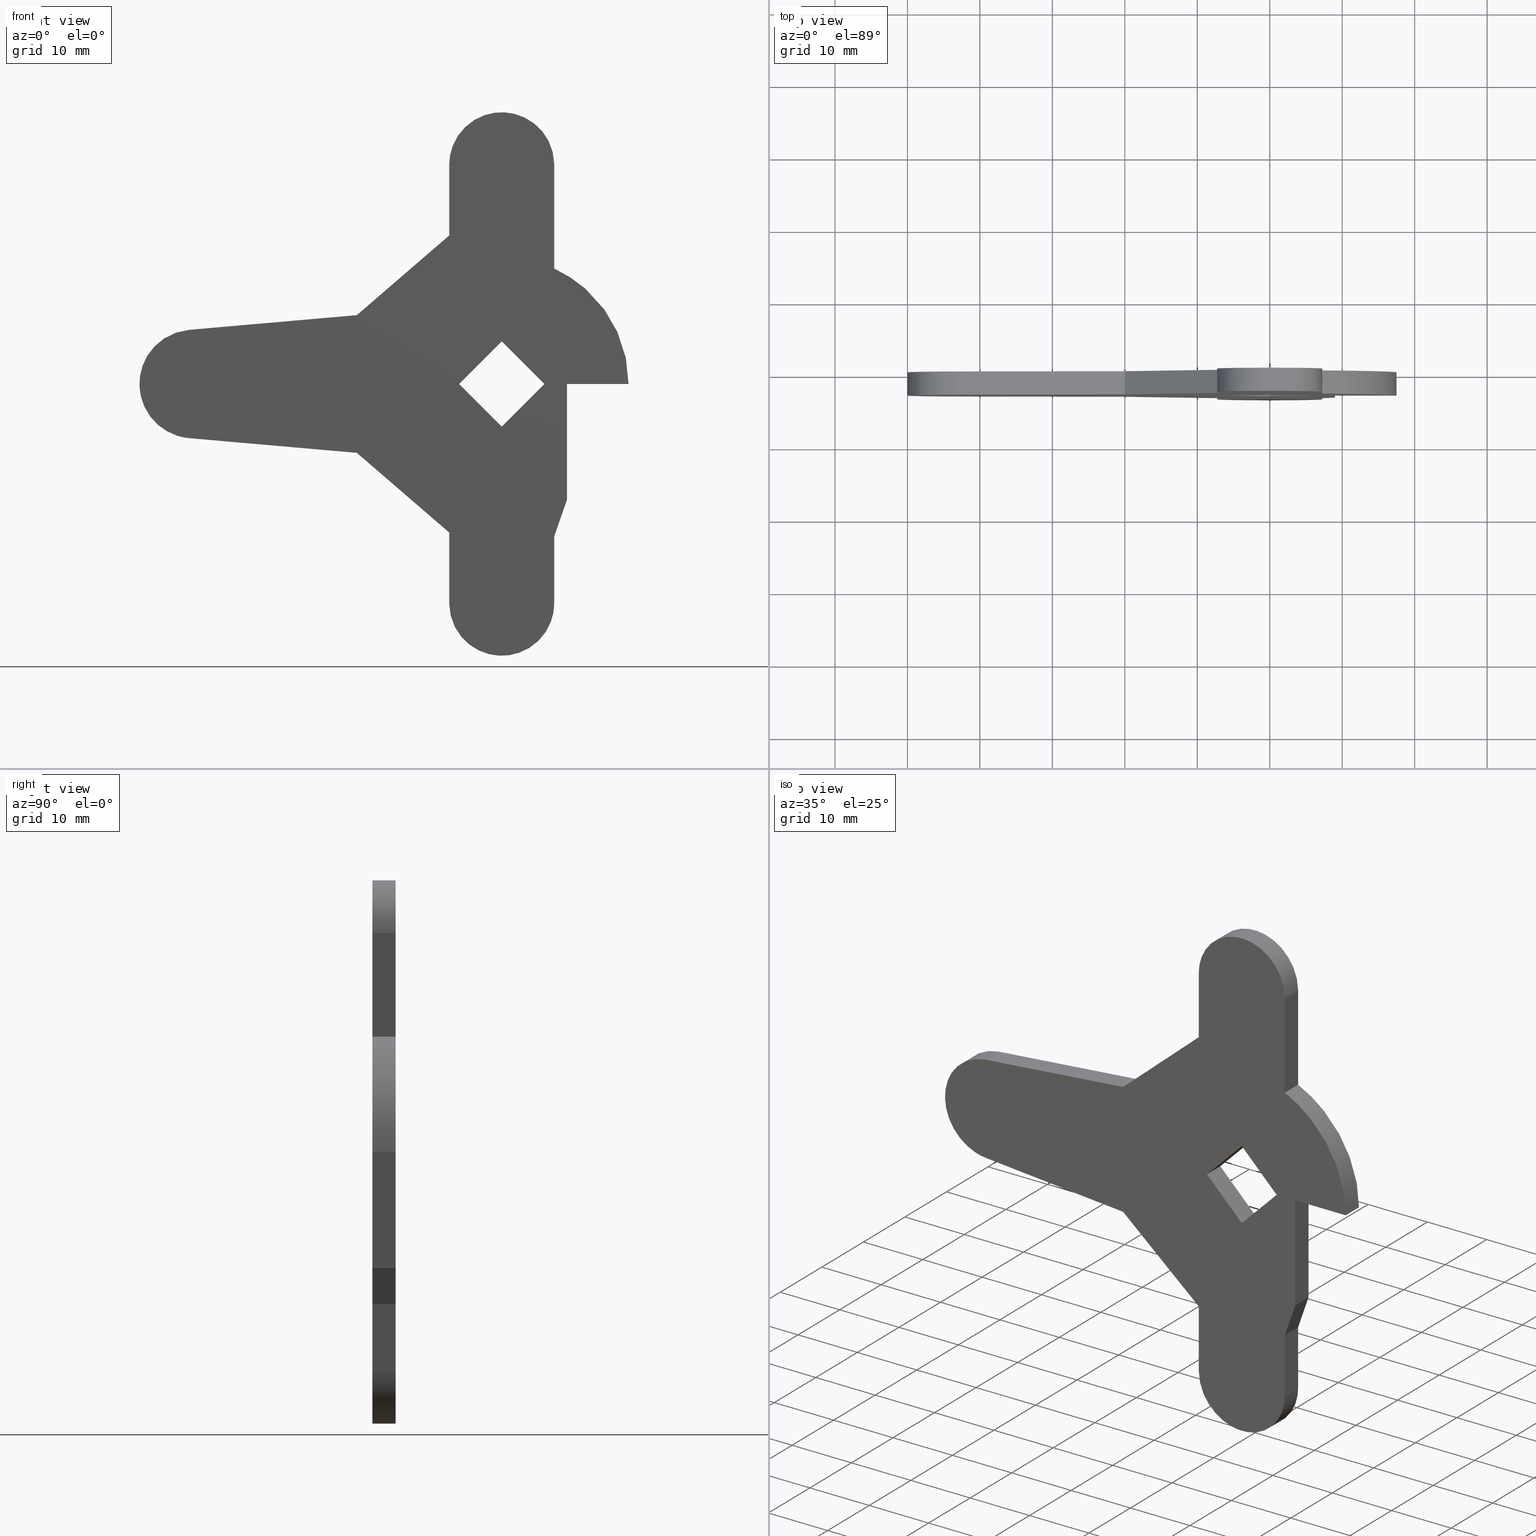
[diagram: canonical four-view strip — front | top / right | iso, engineering-drawing reading convention]
A machine part, canonical four-view strip (front | top / right | iso — engineering-drawing reading convention). The complete STEP part file that produces these views, byte-faithful:
ISO-10303-21;
HEADER;
/****************************************************************
 * Generated by software with PDE/Lib inside                    *
 * PDElib Version 4.4.1-0003, patched  Thursday August 19 11:58 *
 * International Technegroup Inc. (www.iti-oh.com)              *
 ****************************************************************/
FILE_DESCRIPTION((''),'2;1');
FILE_NAME('','2005-10-12T14:37:30',(''),(''),'','CADfix','');
FILE_SCHEMA(('AUTOMOTIVE_DESIGN'));
ENDSEC;
DATA;
#5=APPLICATION_CONTEXT('automotive design');
#6=APPLICATION_PROTOCOL_DEFINITION('Draft International Standard','automotive_design',1998,#5);
#7=PRODUCT_CONTEXT('None',#5,'mechanical');
#8=PRODUCT('cam','','None',(#7));
#9=PRODUCT_RELATED_PRODUCT_CATEGORY('part','description',(#8));
#10=PRODUCT_DEFINITION_FORMATION('None','None',#8);
#11=PRODUCT_DEFINITION_CONTEXT('part definition',#5,'design');
#12=PRODUCT_DEFINITION('None','None',#10,#11);
#18=(NAMED_UNIT(*)PLANE_ANGLE_UNIT()SI_UNIT($,.RADIAN.));
#19=DIMENSIONAL_EXPONENTS(0.0,0.0,0.0,0.0,0.0,0.0,0.0);
#20=PLANE_ANGLE_MEASURE_WITH_UNIT(PLANE_ANGLE_MEASURE(0.017453292500000),#18);
#24=(CONVERSION_BASED_UNIT('DEGREE',#20)NAMED_UNIT(#19)PLANE_ANGLE_UNIT());
#28=(NAMED_UNIT(*)SI_UNIT($,.STERADIAN.)SOLID_ANGLE_UNIT());
#32=(LENGTH_UNIT()NAMED_UNIT(*)SI_UNIT(.MILLI.,.METRE.));
#34=UNCERTAINTY_MEASURE_WITH_UNIT(LENGTH_MEASURE(0.001000000000000),#32,'DISTANCE_ACCURACY_VALUE','');
#36=(GEOMETRIC_REPRESENTATION_CONTEXT(3)GLOBAL_UNCERTAINTY_ASSIGNED_CONTEXT((#34))GLOBAL_UNIT_ASSIGNED_CONTEXT((#24,#28,#32))REPRESENTATION_CONTEXT('None','None'));
#37=AXIS2_PLACEMENT_3D('',#38,#39,#40);
#38=CARTESIAN_POINT('',(0.0,0.0,0.0));
#39=DIRECTION('',(0.0,0.0,1.0));
#40=DIRECTION('',(1.0,0.0,0.0));
#41=ADVANCED_BREP_SHAPE_REPRESENTATION('',(#37,#759),#36);
#42=PRODUCT_DEFINITION_SHAPE('','',#12);
#43=SHAPE_DEFINITION_REPRESENTATION(#42,#41);
#44=CARTESIAN_POINT('',(-53.371669325223678,0.0,41.246249854635423));
#45=CARTESIAN_POINT('',(20.871628794602639,0.0,41.246249854635423));
#46=CARTESIAN_POINT('',(-53.371669325223678,0.0,-41.246251866292177));
#47=CARTESIAN_POINT('',(20.871628794602639,0.0,-41.246251866292177));
#48=B_SPLINE_SURFACE_WITH_KNOTS('',1,1,((#44,#46),(#45,#47)),.UNSPECIFIED.,.F.,.F.,.U.,(2,2),(2,2),(0.0,74.243298119826321),(0.0,82.492501720927606),.UNSPECIFIED.);
#49=CARTESIAN_POINT('',(-7.250000000000000,0.0,20.500000000000000));
#50=VERTEX_POINT('',#49);
#51=CARTESIAN_POINT('',(-20.0,0.0,9.499999999999801));
#52=VERTEX_POINT('',#51);
#53=CARTESIAN_POINT('',(-7.250000000000000,0.0,20.500000000000000));
#54=CARTESIAN_POINT('',(-20.0,0.0,9.499999999999801));
#55=QUASI_UNIFORM_CURVE('',1,(#53,#54),.UNSPECIFIED.,.F.,.U.);
#56=EDGE_CURVE('',#50,#52,#55,.T.);
#57=ORIENTED_EDGE('',*,*,#56,.F.);
#58=CARTESIAN_POINT('',(-7.250000000000000,0.0,30.250000000000000));
#59=VERTEX_POINT('',#58);
#60=CARTESIAN_POINT('',(-7.250000000000000,0.0,30.250000000000000));
#61=CARTESIAN_POINT('',(-7.250000000000000,0.0,20.500000000000000));
#62=QUASI_UNIFORM_CURVE('',1,(#60,#61),.UNSPECIFIED.,.F.,.U.);
#63=EDGE_CURVE('',#59,#50,#62,.T.);
#64=ORIENTED_EDGE('',*,*,#63,.F.);
#65=CARTESIAN_POINT('',(7.249999999999901,0.0,30.250000000000000));
#66=VERTEX_POINT('',#65);
#67=CARTESIAN_POINT('',(7.249999999999901,0.0,30.250000000000000));
#68=CARTESIAN_POINT('',(7.250000000000000,0.0,37.499999999999993));
#69=CARTESIAN_POINT('',(0.0,0.0,37.500000000000000));
#70=CARTESIAN_POINT('',(-7.250000000000000,0.0,37.499999999999993));
#71=CARTESIAN_POINT('',(-7.250000000000000,0.0,30.250000000000000));
#79=(BOUNDED_CURVE()B_SPLINE_CURVE(2,(#67,#68,#69,#70,#71),.UNSPECIFIED.,.F.,.U.)B_SPLINE_CURVE_WITH_KNOTS((3,2,3),(0.0,0.500000000000000,1.0),.UNSPECIFIED.)CURVE()GEOMETRIC_REPRESENTATION_ITEM()RATIONAL_B_SPLINE_CURVE((1.0,0.707106781186548,1.0,0.707106781186548,1.0))REPRESENTATION_ITEM(''));
#80=EDGE_CURVE('',#66,#59,#79,.T.);
#81=ORIENTED_EDGE('',*,*,#80,.F.);
#82=CARTESIAN_POINT('',(7.249999999999901,0.0,15.927570436196500));
#83=VERTEX_POINT('',#82);
#84=CARTESIAN_POINT('',(7.249999999999901,0.0,15.927570436196500));
#85=CARTESIAN_POINT('',(7.249999999999901,0.0,30.250000000000000));
#86=QUASI_UNIFORM_CURVE('',1,(#84,#85),.UNSPECIFIED.,.F.,.U.);
#87=EDGE_CURVE('',#83,#66,#86,.T.);
#88=ORIENTED_EDGE('',*,*,#87,.F.);
#89=CARTESIAN_POINT('',(17.500000000000000,0.0,0.0));
#90=VERTEX_POINT('',#89);
#91=CARTESIAN_POINT('',(17.500000000000000,0.0,0.0));
#92=CARTESIAN_POINT('',(17.500000000000000,0.0,11.261918490240001));
#93=CARTESIAN_POINT('',(7.249999999999916,0.0,15.927570436196520));
#101=(BOUNDED_CURVE()B_SPLINE_CURVE(2,(#91,#92,#93),.UNSPECIFIED.,.F.,.U.)CURVE()GEOMETRIC_REPRESENTATION_ITEM()QUASI_UNIFORM_CURVE()RATIONAL_B_SPLINE_CURVE((1.0,0.840917865872081,1.0))REPRESENTATION_ITEM(''));
#102=EDGE_CURVE('',#90,#83,#101,.T.);
#103=ORIENTED_EDGE('',*,*,#102,.F.);
#104=CARTESIAN_POINT('',(9.0,0.0,0.0));
#105=VERTEX_POINT('',#104);
#106=CARTESIAN_POINT('',(9.0,0.0,0.0));
#107=CARTESIAN_POINT('',(17.500000000000000,0.0,0.0));
#108=QUASI_UNIFORM_CURVE('',1,(#106,#107),.UNSPECIFIED.,.F.,.U.);
#109=EDGE_CURVE('',#105,#90,#108,.T.);
#110=ORIENTED_EDGE('',*,*,#109,.F.);
#111=CARTESIAN_POINT('',(9.0,0.0,-16.0));
#112=VERTEX_POINT('',#111);
#113=CARTESIAN_POINT('',(9.0,0.0,-16.0));
#114=CARTESIAN_POINT('',(9.0,0.0,0.0));
#115=QUASI_UNIFORM_CURVE('',1,(#113,#114),.UNSPECIFIED.,.F.,.U.);
#116=EDGE_CURVE('',#112,#105,#115,.T.);
#117=ORIENTED_EDGE('',*,*,#116,.F.);
#118=CARTESIAN_POINT('',(7.249999999999901,0.0,-21.0));
#119=VERTEX_POINT('',#118);
#120=CARTESIAN_POINT('',(7.249999999999901,0.0,-21.0));
#121=CARTESIAN_POINT('',(9.0,0.0,-16.0));
#122=QUASI_UNIFORM_CURVE('',1,(#120,#121),.UNSPECIFIED.,.F.,.U.);
#123=EDGE_CURVE('',#119,#112,#122,.T.);
#124=ORIENTED_EDGE('',*,*,#123,.F.);
#125=CARTESIAN_POINT('',(7.250000000000000,0.0,-30.250000000000000));
#126=VERTEX_POINT('',#125);
#127=CARTESIAN_POINT('',(7.250000000000000,0.0,-30.250000000000000));
#128=CARTESIAN_POINT('',(7.249999999999901,0.0,-21.0));
#129=QUASI_UNIFORM_CURVE('',1,(#127,#128),.UNSPECIFIED.,.F.,.U.);
#130=EDGE_CURVE('',#126,#119,#129,.T.);
#131=ORIENTED_EDGE('',*,*,#130,.F.);
#132=CARTESIAN_POINT('',(-7.250000000000000,0.0,-30.250000000000000));
#133=VERTEX_POINT('',#132);
#134=CARTESIAN_POINT('',(-7.250000000000000,0.0,-30.250000000000000));
#135=CARTESIAN_POINT('',(-7.250000000000000,0.0,-37.499999999999993));
#136=CARTESIAN_POINT('',(0.0,0.0,-37.500000000000000));
#137=CARTESIAN_POINT('',(7.250000000000000,0.0,-37.499999999999993));
#138=CARTESIAN_POINT('',(7.250000000000000,0.0,-30.250000000000000));
#146=(BOUNDED_CURVE()B_SPLINE_CURVE(2,(#134,#135,#136,#137,#138),.UNSPECIFIED.,.F.,.U.)B_SPLINE_CURVE_WITH_KNOTS((3,2,3),(0.0,0.500000000000000,1.0),.UNSPECIFIED.)CURVE()GEOMETRIC_REPRESENTATION_ITEM()RATIONAL_B_SPLINE_CURVE((1.0,0.707106781186548,1.0,0.707106781186548,1.0))REPRESENTATION_ITEM(''));
#147=EDGE_CURVE('',#133,#126,#146,.T.);
#148=ORIENTED_EDGE('',*,*,#147,.F.);
#149=CARTESIAN_POINT('',(-7.250000000000000,0.0,-20.500000000000000));
#150=VERTEX_POINT('',#149);
#151=CARTESIAN_POINT('',(-7.250000000000000,0.0,-20.500000000000000));
#152=CARTESIAN_POINT('',(-7.250000000000000,0.0,-30.250000000000000));
#153=QUASI_UNIFORM_CURVE('',1,(#151,#152),.UNSPECIFIED.,.F.,.U.);
#154=EDGE_CURVE('',#150,#133,#153,.T.);
#155=ORIENTED_EDGE('',*,*,#154,.F.);
#156=CARTESIAN_POINT('',(-20.0,0.0,-9.500000000000000));
#157=VERTEX_POINT('',#156);
#158=CARTESIAN_POINT('',(-20.0,0.0,-9.500000000000000));
#159=CARTESIAN_POINT('',(-7.250000000000000,0.0,-20.500000000000000));
#160=QUASI_UNIFORM_CURVE('',1,(#158,#159),.UNSPECIFIED.,.F.,.U.);
#161=EDGE_CURVE('',#157,#150,#160,.T.);
#162=ORIENTED_EDGE('',*,*,#161,.F.);
#163=CARTESIAN_POINT('',(-43.154599674777700,0.0,-7.471400028493091));
#164=VERTEX_POINT('',#163);
#165=CARTESIAN_POINT('',(-43.154599674777700,0.0,-7.471400028493091));
#166=CARTESIAN_POINT('',(-20.0,0.0,-9.500000000000000));
#167=QUASI_UNIFORM_CURVE('',1,(#165,#166),.UNSPECIFIED.,.F.,.U.);
#168=EDGE_CURVE('',#164,#157,#167,.T.);
#169=ORIENTED_EDGE('',*,*,#168,.F.);
#170=CARTESIAN_POINT('',(-43.154600000000002,0.0,7.471399999999900));
#171=VERTEX_POINT('',#170);
#172=CARTESIAN_POINT('',(-43.154600000000002,0.0,7.471399999999907));
#173=CARTESIAN_POINT('',(-50.000041887174163,0.0,6.871663299200882));
#174=CARTESIAN_POINT('',(-50.000041737615973,0.0,-0.000000163234088));
#175=CARTESIAN_POINT('',(-50.000041588057769,0.0,-6.871663625669059));
#176=CARTESIAN_POINT('',(-43.154599674777700,0.0,-7.471400028493090));
#184=(BOUNDED_CURVE()B_SPLINE_CURVE(2,(#172,#173,#174,#175,#176),.UNSPECIFIED.,.F.,.U.)B_SPLINE_CURVE_WITH_KNOTS((3,2,3),(0.0,0.500000000000000,1.0),.UNSPECIFIED.)CURVE()GEOMETRIC_REPRESENTATION_ITEM()RATIONAL_B_SPLINE_CURVE((1.0,0.737318372285746,1.0,0.737318372285746,1.0))REPRESENTATION_ITEM(''));
#185=EDGE_CURVE('',#171,#164,#184,.T.);
#186=ORIENTED_EDGE('',*,*,#185,.F.);
#187=CARTESIAN_POINT('',(-20.0,0.0,9.499999999999801));
#188=CARTESIAN_POINT('',(-43.154600000000002,0.0,7.471399999999900));
#189=QUASI_UNIFORM_CURVE('',1,(#187,#188),.UNSPECIFIED.,.F.,.U.);
#190=EDGE_CURVE('',#52,#171,#189,.T.);
#191=ORIENTED_EDGE('',*,*,#190,.F.);
#192=EDGE_LOOP('',(#57,#64,#81,#88,#103,#110,#117,#124,#131,#148,#155,#162,#169,#186,#191));
#193=FACE_OUTER_BOUND('',#192,.T.);
#194=CARTESIAN_POINT('',(5.868999999999900,0.0,0.0));
#195=VERTEX_POINT('',#194);
#196=CARTESIAN_POINT('',(0.0,0.0,-5.869000000000000));
#197=VERTEX_POINT('',#196);
#198=CARTESIAN_POINT('',(5.868999999999900,0.0,0.0));
#199=CARTESIAN_POINT('',(0.0,0.0,-5.869000000000000));
#200=QUASI_UNIFORM_CURVE('',1,(#198,#199),.UNSPECIFIED.,.F.,.U.);
#201=EDGE_CURVE('',#195,#197,#200,.T.);
#202=ORIENTED_EDGE('',*,*,#201,.F.);
#203=CARTESIAN_POINT('',(0.0,0.0,5.869000000000000));
#204=VERTEX_POINT('',#203);
#205=CARTESIAN_POINT('',(0.0,0.0,5.869000000000000));
#206=CARTESIAN_POINT('',(5.868999999999900,0.0,0.0));
#207=QUASI_UNIFORM_CURVE('',1,(#205,#206),.UNSPECIFIED.,.F.,.U.);
#208=EDGE_CURVE('',#204,#195,#207,.T.);
#209=ORIENTED_EDGE('',*,*,#208,.F.);
#210=CARTESIAN_POINT('',(-5.869000000000000,0.0,0.0));
#211=VERTEX_POINT('',#210);
#212=CARTESIAN_POINT('',(-5.869000000000000,0.0,0.0));
#213=CARTESIAN_POINT('',(0.0,0.0,5.869000000000000));
#214=QUASI_UNIFORM_CURVE('',1,(#212,#213),.UNSPECIFIED.,.F.,.U.);
#215=EDGE_CURVE('',#211,#204,#214,.T.);
#216=ORIENTED_EDGE('',*,*,#215,.F.);
#217=CARTESIAN_POINT('',(0.0,0.0,-5.869000000000000));
#218=CARTESIAN_POINT('',(-5.869000000000000,0.0,0.0));
#219=QUASI_UNIFORM_CURVE('',1,(#217,#218),.UNSPECIFIED.,.F.,.U.);
#220=EDGE_CURVE('',#197,#211,#219,.T.);
#221=ORIENTED_EDGE('',*,*,#220,.F.);
#222=EDGE_LOOP('',(#202,#209,#216,#221));
#223=FACE_BOUND('',#222,.T.);
#224=ADVANCED_FACE('',(#193,#223),#48,.T.);
#225=CARTESIAN_POINT('',(-53.371669325223678,-3.200000000000000,41.246249854635423));
#226=CARTESIAN_POINT('',(20.871628794602639,-3.200000000000000,41.246249854635423));
#227=CARTESIAN_POINT('',(-53.371669325223678,-3.200000000000000,-41.246251866292177));
#228=CARTESIAN_POINT('',(20.871628794602639,-3.200000000000000,-41.246251866292177));
#229=B_SPLINE_SURFACE_WITH_KNOTS('',1,1,((#225,#227),(#226,#228)),.UNSPECIFIED.,.F.,.F.,.U.,(2,2),(2,2),(0.0,74.243298119826321),(0.0,82.492501720927606),.UNSPECIFIED.);
#230=CARTESIAN_POINT('',(-7.250000000000000,-3.200000000000000,20.500000000000000));
#231=VERTEX_POINT('',#230);
#232=CARTESIAN_POINT('',(-20.0,-3.200000000000000,9.499999999999801));
#233=VERTEX_POINT('',#232);
#234=CARTESIAN_POINT('',(-7.250000000000000,-3.200000000000000,20.500000000000000));
#235=CARTESIAN_POINT('',(-20.0,-3.200000000000000,9.499999999999801));
#236=QUASI_UNIFORM_CURVE('',1,(#234,#235),.UNSPECIFIED.,.F.,.U.);
#237=EDGE_CURVE('',#231,#233,#236,.T.);
#238=ORIENTED_EDGE('',*,*,#237,.T.);
#239=CARTESIAN_POINT('',(-43.154600000000002,-3.200000000000000,7.471399999999900));
#240=VERTEX_POINT('',#239);
#241=CARTESIAN_POINT('',(-20.0,-3.200000000000000,9.499999999999801));
#242=CARTESIAN_POINT('',(-43.154600000000002,-3.200000000000000,7.471399999999900));
#243=QUASI_UNIFORM_CURVE('',1,(#241,#242),.UNSPECIFIED.,.F.,.U.);
#244=EDGE_CURVE('',#233,#240,#243,.T.);
#245=ORIENTED_EDGE('',*,*,#244,.T.);
#246=CARTESIAN_POINT('',(-43.154599674777700,-3.200000000000000,-7.471400028493091));
#247=VERTEX_POINT('',#246);
#248=CARTESIAN_POINT('',(-43.154600000000002,-3.200000000000000,7.471399999999907));
#249=CARTESIAN_POINT('',(-50.000041887174163,-3.200000000000001,6.871663299200882));
#250=CARTESIAN_POINT('',(-50.000041737615973,-3.200000000000000,-0.000000163234088));
#251=CARTESIAN_POINT('',(-50.000041588057769,-3.200000000000001,-6.871663625669059));
#252=CARTESIAN_POINT('',(-43.154599674777700,-3.200000000000000,-7.471400028493090));
#260=(BOUNDED_CURVE()B_SPLINE_CURVE(2,(#248,#249,#250,#251,#252),.UNSPECIFIED.,.F.,.U.)B_SPLINE_CURVE_WITH_KNOTS((3,2,3),(0.0,0.500000000000000,1.0),.UNSPECIFIED.)CURVE()GEOMETRIC_REPRESENTATION_ITEM()RATIONAL_B_SPLINE_CURVE((1.0,0.737318372285746,1.0,0.737318372285746,1.0))REPRESENTATION_ITEM(''));
#261=EDGE_CURVE('',#240,#247,#260,.T.);
#262=ORIENTED_EDGE('',*,*,#261,.T.);
#263=CARTESIAN_POINT('',(-20.0,-3.200000000000000,-9.500000000000000));
#264=VERTEX_POINT('',#263);
#265=CARTESIAN_POINT('',(-43.154599674777700,-3.200000000000000,-7.471400028493091));
#266=CARTESIAN_POINT('',(-20.0,-3.200000000000000,-9.500000000000000));
#267=QUASI_UNIFORM_CURVE('',1,(#265,#266),.UNSPECIFIED.,.F.,.U.);
#268=EDGE_CURVE('',#247,#264,#267,.T.);
#269=ORIENTED_EDGE('',*,*,#268,.T.);
#270=CARTESIAN_POINT('',(-7.250000000000000,-3.200000000000000,-20.500000000000000));
#271=VERTEX_POINT('',#270);
#272=CARTESIAN_POINT('',(-20.0,-3.200000000000000,-9.500000000000000));
#273=CARTESIAN_POINT('',(-7.250000000000000,-3.200000000000000,-20.500000000000000));
#274=QUASI_UNIFORM_CURVE('',1,(#272,#273),.UNSPECIFIED.,.F.,.U.);
#275=EDGE_CURVE('',#264,#271,#274,.T.);
#276=ORIENTED_EDGE('',*,*,#275,.T.);
#277=CARTESIAN_POINT('',(-7.250000000000000,-3.200000000000000,-30.250000000000000));
#278=VERTEX_POINT('',#277);
#279=CARTESIAN_POINT('',(-7.250000000000000,-3.200000000000000,-20.500000000000000));
#280=CARTESIAN_POINT('',(-7.250000000000000,-3.200000000000000,-30.250000000000000));
#281=QUASI_UNIFORM_CURVE('',1,(#279,#280),.UNSPECIFIED.,.F.,.U.);
#282=EDGE_CURVE('',#271,#278,#281,.T.);
#283=ORIENTED_EDGE('',*,*,#282,.T.);
#284=CARTESIAN_POINT('',(7.250000000000000,-3.200000000000000,-30.250000000000000));
#285=VERTEX_POINT('',#284);
#286=CARTESIAN_POINT('',(-7.250000000000000,-3.200000000000000,-30.250000000000000));
#287=CARTESIAN_POINT('',(-7.250000000000000,-3.200000000000000,-37.499999999999993));
#288=CARTESIAN_POINT('',(0.0,-3.200000000000000,-37.500000000000000));
#289=CARTESIAN_POINT('',(7.250000000000000,-3.200000000000000,-37.499999999999993));
#290=CARTESIAN_POINT('',(7.250000000000000,-3.200000000000000,-30.250000000000000));
#298=(BOUNDED_CURVE()B_SPLINE_CURVE(2,(#286,#287,#288,#289,#290),.UNSPECIFIED.,.F.,.U.)B_SPLINE_CURVE_WITH_KNOTS((3,2,3),(0.0,0.500000000000000,1.0),.UNSPECIFIED.)CURVE()GEOMETRIC_REPRESENTATION_ITEM()RATIONAL_B_SPLINE_CURVE((1.0,0.707106781186548,1.0,0.707106781186548,1.0))REPRESENTATION_ITEM(''));
#299=EDGE_CURVE('',#278,#285,#298,.T.);
#300=ORIENTED_EDGE('',*,*,#299,.T.);
#301=CARTESIAN_POINT('',(7.249999999999901,-3.200000000000000,-21.0));
#302=VERTEX_POINT('',#301);
#303=CARTESIAN_POINT('',(7.250000000000000,-3.200000000000000,-30.250000000000000));
#304=CARTESIAN_POINT('',(7.249999999999901,-3.200000000000000,-21.0));
#305=QUASI_UNIFORM_CURVE('',1,(#303,#304),.UNSPECIFIED.,.F.,.U.);
#306=EDGE_CURVE('',#285,#302,#305,.T.);
#307=ORIENTED_EDGE('',*,*,#306,.T.);
#308=CARTESIAN_POINT('',(9.0,-3.200000000000000,-16.0));
#309=VERTEX_POINT('',#308);
#310=CARTESIAN_POINT('',(7.249999999999901,-3.200000000000000,-21.0));
#311=CARTESIAN_POINT('',(9.0,-3.200000000000000,-16.0));
#312=QUASI_UNIFORM_CURVE('',1,(#310,#311),.UNSPECIFIED.,.F.,.U.);
#313=EDGE_CURVE('',#302,#309,#312,.T.);
#314=ORIENTED_EDGE('',*,*,#313,.T.);
#315=CARTESIAN_POINT('',(9.0,-3.200000000000000,0.0));
#316=VERTEX_POINT('',#315);
#317=CARTESIAN_POINT('',(9.0,-3.200000000000000,-16.0));
#318=CARTESIAN_POINT('',(9.0,-3.200000000000000,0.0));
#319=QUASI_UNIFORM_CURVE('',1,(#317,#318),.UNSPECIFIED.,.F.,.U.);
#320=EDGE_CURVE('',#309,#316,#319,.T.);
#321=ORIENTED_EDGE('',*,*,#320,.T.);
#322=CARTESIAN_POINT('',(17.500000000000000,-3.200000000000000,0.0));
#323=VERTEX_POINT('',#322);
#324=CARTESIAN_POINT('',(9.0,-3.200000000000000,0.0));
#325=CARTESIAN_POINT('',(17.500000000000000,-3.200000000000000,0.0));
#326=QUASI_UNIFORM_CURVE('',1,(#324,#325),.UNSPECIFIED.,.F.,.U.);
#327=EDGE_CURVE('',#316,#323,#326,.T.);
#328=ORIENTED_EDGE('',*,*,#327,.T.);
#329=CARTESIAN_POINT('',(7.249999999999901,-3.200000000000000,15.927570436196500));
#330=VERTEX_POINT('',#329);
#331=CARTESIAN_POINT('',(17.500000000000000,-3.200000000000000,0.0));
#332=CARTESIAN_POINT('',(17.500000000000000,-3.200000000000000,11.261918490240001));
#333=CARTESIAN_POINT('',(7.249999999999916,-3.200000000000000,15.927570436196520));
#341=(BOUNDED_CURVE()B_SPLINE_CURVE(2,(#331,#332,#333),.UNSPECIFIED.,.F.,.U.)CURVE()GEOMETRIC_REPRESENTATION_ITEM()QUASI_UNIFORM_CURVE()RATIONAL_B_SPLINE_CURVE((1.0,0.840917865872081,1.0))REPRESENTATION_ITEM(''));
#342=EDGE_CURVE('',#323,#330,#341,.T.);
#343=ORIENTED_EDGE('',*,*,#342,.T.);
#344=CARTESIAN_POINT('',(7.249999999999901,-3.200000000000000,30.250000000000000));
#345=VERTEX_POINT('',#344);
#346=CARTESIAN_POINT('',(7.249999999999901,-3.200000000000000,15.927570436196500));
#347=CARTESIAN_POINT('',(7.249999999999901,-3.200000000000000,30.250000000000000));
#348=QUASI_UNIFORM_CURVE('',1,(#346,#347),.UNSPECIFIED.,.F.,.U.);
#349=EDGE_CURVE('',#330,#345,#348,.T.);
#350=ORIENTED_EDGE('',*,*,#349,.T.);
#351=CARTESIAN_POINT('',(-7.250000000000000,-3.200000000000000,30.250000000000000));
#352=VERTEX_POINT('',#351);
#353=CARTESIAN_POINT('',(7.249999999999901,-3.200000000000000,30.250000000000000));
#354=CARTESIAN_POINT('',(7.250000000000000,-3.200000000000000,37.499999999999993));
#355=CARTESIAN_POINT('',(0.0,-3.200000000000000,37.500000000000000));
#356=CARTESIAN_POINT('',(-7.250000000000000,-3.200000000000000,37.499999999999993));
#357=CARTESIAN_POINT('',(-7.250000000000000,-3.200000000000000,30.250000000000000));
#365=(BOUNDED_CURVE()B_SPLINE_CURVE(2,(#353,#354,#355,#356,#357),.UNSPECIFIED.,.F.,.U.)B_SPLINE_CURVE_WITH_KNOTS((3,2,3),(0.0,0.500000000000000,1.0),.UNSPECIFIED.)CURVE()GEOMETRIC_REPRESENTATION_ITEM()RATIONAL_B_SPLINE_CURVE((1.0,0.707106781186548,1.0,0.707106781186548,1.0))REPRESENTATION_ITEM(''));
#366=EDGE_CURVE('',#345,#352,#365,.T.);
#367=ORIENTED_EDGE('',*,*,#366,.T.);
#368=CARTESIAN_POINT('',(-7.250000000000000,-3.200000000000000,30.250000000000000));
#369=CARTESIAN_POINT('',(-7.250000000000000,-3.200000000000000,20.500000000000000));
#370=QUASI_UNIFORM_CURVE('',1,(#368,#369),.UNSPECIFIED.,.F.,.U.);
#371=EDGE_CURVE('',#352,#231,#370,.T.);
#372=ORIENTED_EDGE('',*,*,#371,.T.);
#373=EDGE_LOOP('',(#238,#245,#262,#269,#276,#283,#300,#307,#314,#321,#328,#343,#350,#367,#372));
#374=FACE_OUTER_BOUND('',#373,.T.);
#375=CARTESIAN_POINT('',(5.868999999999900,-3.200000000000000,0.0));
#376=VERTEX_POINT('',#375);
#377=CARTESIAN_POINT('',(0.0,-3.200000000000000,-5.869000000000000));
#378=VERTEX_POINT('',#377);
#379=CARTESIAN_POINT('',(5.868999999999900,-3.200000000000000,0.0));
#380=CARTESIAN_POINT('',(0.0,-3.200000000000000,-5.869000000000000));
#381=QUASI_UNIFORM_CURVE('',1,(#379,#380),.UNSPECIFIED.,.F.,.U.);
#382=EDGE_CURVE('',#376,#378,#381,.T.);
#383=ORIENTED_EDGE('',*,*,#382,.T.);
#384=CARTESIAN_POINT('',(-5.869000000000000,-3.200000000000000,0.0));
#385=VERTEX_POINT('',#384);
#386=CARTESIAN_POINT('',(0.0,-3.200000000000000,-5.869000000000000));
#387=CARTESIAN_POINT('',(-5.869000000000000,-3.200000000000000,0.0));
#388=QUASI_UNIFORM_CURVE('',1,(#386,#387),.UNSPECIFIED.,.F.,.U.);
#389=EDGE_CURVE('',#378,#385,#388,.T.);
#390=ORIENTED_EDGE('',*,*,#389,.T.);
#391=CARTESIAN_POINT('',(0.0,-3.200000000000000,5.869000000000000));
#392=VERTEX_POINT('',#391);
#393=CARTESIAN_POINT('',(-5.869000000000000,-3.200000000000000,0.0));
#394=CARTESIAN_POINT('',(0.0,-3.200000000000000,5.869000000000000));
#395=QUASI_UNIFORM_CURVE('',1,(#393,#394),.UNSPECIFIED.,.F.,.U.);
#396=EDGE_CURVE('',#385,#392,#395,.T.);
#397=ORIENTED_EDGE('',*,*,#396,.T.);
#398=CARTESIAN_POINT('',(0.0,-3.200000000000000,5.869000000000000));
#399=CARTESIAN_POINT('',(5.868999999999900,-3.200000000000000,0.0));
#400=QUASI_UNIFORM_CURVE('',1,(#398,#399),.UNSPECIFIED.,.F.,.U.);
#401=EDGE_CURVE('',#392,#376,#400,.T.);
#402=ORIENTED_EDGE('',*,*,#401,.T.);
#403=EDGE_LOOP('',(#383,#390,#397,#402));
#404=FACE_BOUND('',#403,.T.);
#405=ADVANCED_FACE('',(#374,#404),#229,.F.);
#406=CARTESIAN_POINT('',(-0.293156538624735,-3.359840053876400,6.162156538624739));
#407=CARTESIAN_POINT('',(6.162156696043483,-3.359840053876400,-0.293156696043586));
#408=CARTESIAN_POINT('',(-0.293156538624735,0.159840082486630,6.162156538624739));
#409=CARTESIAN_POINT('',(6.162156696043483,0.159840082486630,-0.293156696043586));
#410=B_SPLINE_SURFACE_WITH_KNOTS('',1,1,((#406,#408),(#407,#409)),.UNSPECIFIED.,.F.,.F.,.U.,(2,2),(2,2),(0.0,9.129191525834404),(0.0,3.519680136363030),.UNSPECIFIED.);
#411=ORIENTED_EDGE('',*,*,#208,.T.);
#412=CARTESIAN_POINT('',(5.868999999999900,-3.200000000000000,0.0));
#413=CARTESIAN_POINT('',(5.868999999999900,0.0,0.0));
#414=QUASI_UNIFORM_CURVE('',1,(#412,#413),.UNSPECIFIED.,.F.,.U.);
#415=EDGE_CURVE('',#376,#195,#414,.T.);
#416=ORIENTED_EDGE('',*,*,#415,.F.);
#417=ORIENTED_EDGE('',*,*,#401,.F.);
#418=CARTESIAN_POINT('',(0.0,-3.200000000000000,5.869000000000000));
#419=CARTESIAN_POINT('',(0.0,0.0,5.869000000000000));
#420=QUASI_UNIFORM_CURVE('',1,(#418,#419),.UNSPECIFIED.,.F.,.U.);
#421=EDGE_CURVE('',#392,#204,#420,.T.);
#422=ORIENTED_EDGE('',*,*,#421,.T.);
#423=EDGE_LOOP('',(#411,#416,#417,#422));
#424=FACE_OUTER_BOUND('',#423,.T.);
#425=ADVANCED_FACE('',(#424),#410,.F.);
#426=CARTESIAN_POINT('',(-7.250000000000000,-3.359840053876400,30.737012481102610));
#427=CARTESIAN_POINT('',(-7.250000000000000,-3.359840053876400,20.012987257382012));
#428=CARTESIAN_POINT('',(-7.250000000000000,0.159840082486629,30.737012481102610));
#429=CARTESIAN_POINT('',(-7.250000000000000,0.159840082486629,20.012987257382012));
#430=B_SPLINE_SURFACE_WITH_KNOTS('',1,1,((#426,#428),(#427,#429)),.UNSPECIFIED.,.F.,.F.,.U.,(2,2),(2,2),(0.0,10.724025223720609),(0.0,3.519680136363030),.UNSPECIFIED.);
#431=ORIENTED_EDGE('',*,*,#63,.T.);
#432=CARTESIAN_POINT('',(-7.250000000000000,-3.200000000000000,20.500000000000000));
#433=CARTESIAN_POINT('',(-7.250000000000000,0.0,20.500000000000000));
#434=QUASI_UNIFORM_CURVE('',1,(#432,#433),.UNSPECIFIED.,.F.,.U.);
#435=EDGE_CURVE('',#231,#50,#434,.T.);
#436=ORIENTED_EDGE('',*,*,#435,.F.);
#437=ORIENTED_EDGE('',*,*,#371,.F.);
#438=CARTESIAN_POINT('',(-7.250000000000000,-3.200000000000000,30.250000000000000));
#439=CARTESIAN_POINT('',(-7.250000000000000,0.0,30.250000000000000));
#440=QUASI_UNIFORM_CURVE('',1,(#438,#439),.UNSPECIFIED.,.F.,.U.);
#441=EDGE_CURVE('',#352,#59,#440,.T.);
#442=ORIENTED_EDGE('',*,*,#441,.T.);
#443=EDGE_LOOP('',(#431,#436,#437,#442));
#444=FACE_OUTER_BOUND('',#443,.T.);
#445=ADVANCED_FACE('',(#444),#430,.F.);
#446=CARTESIAN_POINT('',(7.247515606072788,-3.280000000000000,30.060217124767910));
#447=CARTESIAN_POINT('',(7.247515606072788,0.082000000000000,30.060217124767910));
#448=CARTESIAN_POINT('',(7.445765383914885,-3.280000000000001,37.631070696534827));
#449=CARTESIAN_POINT('',(7.445765383914885,0.082000000000000,37.631070696534827));
#450=CARTESIAN_POINT('',(-0.126529946670296,-3.280000000000000,37.498895789883832));
#451=CARTESIAN_POINT('',(-0.126529946670296,0.082000000000000,37.498895789883832));
#452=CARTESIAN_POINT('',(-7.698825277255470,-3.280000000000001,37.366720883232837));
#453=CARTESIAN_POINT('',(-7.698825277255470,0.082000000000000,37.366720883232837));
#454=CARTESIAN_POINT('',(-7.236477288558529,-3.280000000000000,29.807398088372299));
#455=CARTESIAN_POINT('',(-7.236477288558529,0.082000000000000,29.807398088372299));
#463=(BOUNDED_SURFACE()B_SPLINE_SURFACE(1,2,((#446,#448,#450,#452,#454),(#447,#449,#451,#453,#455)),.UNSPECIFIED.,.F.,.F.,.U.)B_SPLINE_SURFACE_WITH_KNOTS((2,2),(3,2,3),(0.0,3.362000000000001),(0.0,12.384506775234360,24.769013550468731),.UNSPECIFIED.)GEOMETRIC_REPRESENTATION_ITEM()RATIONAL_B_SPLINE_SURFACE(((1.0,0.691513055782269,1.0,0.691513055782269,1.0),(1.0,0.691513055782269,1.0,0.691513055782269,1.0)))REPRESENTATION_ITEM('')SURFACE());
#464=ORIENTED_EDGE('',*,*,#80,.T.);
#465=ORIENTED_EDGE('',*,*,#441,.F.);
#466=ORIENTED_EDGE('',*,*,#366,.F.);
#467=CARTESIAN_POINT('',(7.249999999999901,-3.200000000000000,30.250000000000000));
#468=CARTESIAN_POINT('',(7.249999999999901,0.0,30.250000000000000));
#469=QUASI_UNIFORM_CURVE('',1,(#467,#468),.UNSPECIFIED.,.F.,.U.);
#470=EDGE_CURVE('',#345,#66,#469,.T.);
#471=ORIENTED_EDGE('',*,*,#470,.T.);
#472=EDGE_LOOP('',(#464,#465,#466,#471));
#473=FACE_OUTER_BOUND('',#472,.T.);
#474=ADVANCED_FACE('',(#473),#463,.T.);
#475=CARTESIAN_POINT('',(7.249999999999901,-3.359840053876400,15.212164972795440));
#476=CARTESIAN_POINT('',(7.249999999999901,-3.359840053876400,30.965405719506059));
#477=CARTESIAN_POINT('',(7.249999999999901,0.159840082486629,15.212164972795440));
#478=CARTESIAN_POINT('',(7.249999999999901,0.159840082486629,30.965405719506059));
#479=B_SPLINE_SURFACE_WITH_KNOTS('',1,1,((#475,#477),(#476,#478)),.UNSPECIFIED.,.F.,.F.,.U.,(2,2),(2,2),(0.0,15.753240746710620),(0.0,3.519680136363030),.UNSPECIFIED.);
#480=ORIENTED_EDGE('',*,*,#87,.T.);
#481=ORIENTED_EDGE('',*,*,#470,.F.);
#482=ORIENTED_EDGE('',*,*,#349,.F.);
#483=CARTESIAN_POINT('',(7.249999999999901,-3.200000000000000,15.927570436196500));
#484=CARTESIAN_POINT('',(7.249999999999901,0.0,15.927570436196500));
#485=QUASI_UNIFORM_CURVE('',1,(#483,#484),.UNSPECIFIED.,.F.,.U.);
#486=EDGE_CURVE('',#330,#83,#485,.T.);
#487=ORIENTED_EDGE('',*,*,#486,.T.);
#488=EDGE_LOOP('',(#480,#481,#482,#487));
#489=FACE_OUTER_BOUND('',#488,.T.);
#490=ADVANCED_FACE('',(#489),#479,.F.);
#491=CARTESIAN_POINT('',(17.499333653622990,-3.280000000000001,-0.152714371221529));
#492=CARTESIAN_POINT('',(17.499333653622990,0.082000000000000,-0.152714371221529));
#493=CARTESIAN_POINT('',(17.604291333068367,-3.280000000000000,11.874244437129949));
#494=CARTESIAN_POINT('',(17.604291333068367,0.082000000000000,11.874244437129949));
#495=CARTESIAN_POINT('',(6.413771467675194,-3.280000000000001,16.282307439685429));
#496=CARTESIAN_POINT('',(6.413771467675194,0.082000000000000,16.282307439685429));
#504=(BOUNDED_SURFACE()B_SPLINE_SURFACE(1,2,((#491,#493,#495),(#492,#494,#496)),.UNSPECIFIED.,.F.,.F.,.U.)B_SPLINE_SURFACE_WITH_KNOTS((2,2),(3,3),(0.0,3.362000000000001),(0.0,21.735577742398160),.UNSPECIFIED.)GEOMETRIC_REPRESENTATION_ITEM()RATIONAL_B_SPLINE_SURFACE(((1.0,0.824126188622016,1.0),(1.0,0.824126188622016,1.0)))REPRESENTATION_ITEM('')SURFACE());
#505=ORIENTED_EDGE('',*,*,#102,.T.);
#506=ORIENTED_EDGE('',*,*,#486,.F.);
#507=ORIENTED_EDGE('',*,*,#342,.F.);
#508=CARTESIAN_POINT('',(17.500000000000000,-3.200000000000000,0.0));
#509=CARTESIAN_POINT('',(17.500000000000000,0.0,0.0));
#510=QUASI_UNIFORM_CURVE('',1,(#508,#509),.UNSPECIFIED.,.F.,.U.);
#511=EDGE_CURVE('',#323,#90,#510,.T.);
#512=ORIENTED_EDGE('',*,*,#511,.T.);
#513=EDGE_LOOP('',(#505,#506,#507,#512));
#514=FACE_OUTER_BOUND('',#513,.T.);
#515=ADVANCED_FACE('',(#514),#504,.T.);
#516=CARTESIAN_POINT('',(8.575425016474648,-3.359840053876400,0.0));
#517=CARTESIAN_POINT('',(17.924575211513119,-3.359840053876400,0.0));
#518=CARTESIAN_POINT('',(8.575425016474650,0.159840082486629,0.0));
#519=CARTESIAN_POINT('',(17.924575211513119,0.159840082486629,0.0));
#520=B_SPLINE_SURFACE_WITH_KNOTS('',1,1,((#516,#518),(#517,#519)),.UNSPECIFIED.,.F.,.F.,.U.,(2,2),(2,2),(0.0,9.349150195038471),(0.0,3.519680136363029),.UNSPECIFIED.);
#521=ORIENTED_EDGE('',*,*,#109,.T.);
#522=ORIENTED_EDGE('',*,*,#511,.F.);
#523=ORIENTED_EDGE('',*,*,#327,.F.);
#524=CARTESIAN_POINT('',(9.0,-3.200000000000000,0.0));
#525=CARTESIAN_POINT('',(9.0,0.0,0.0));
#526=QUASI_UNIFORM_CURVE('',1,(#524,#525),.UNSPECIFIED.,.F.,.U.);
#527=EDGE_CURVE('',#316,#105,#526,.T.);
#528=ORIENTED_EDGE('',*,*,#527,.T.);
#529=EDGE_LOOP('',(#521,#522,#523,#528));
#530=FACE_OUTER_BOUND('',#529,.T.);
#531=ADVANCED_FACE('',(#530),#520,.F.);
#532=CARTESIAN_POINT('',(9.0,-3.359840053876400,-16.799199968988891));
#533=CARTESIAN_POINT('',(9.0,-3.359840053876400,0.799200398142338));
#534=CARTESIAN_POINT('',(9.0,0.159840082486629,-16.799199968988891));
#535=CARTESIAN_POINT('',(9.0,0.159840082486629,0.799200398142338));
#536=B_SPLINE_SURFACE_WITH_KNOTS('',1,1,((#532,#534),(#533,#535)),.UNSPECIFIED.,.F.,.F.,.U.,(2,2),(2,2),(0.0,17.598400367131230),(0.0,3.519680136363029),.UNSPECIFIED.);
#537=ORIENTED_EDGE('',*,*,#116,.T.);
#538=ORIENTED_EDGE('',*,*,#527,.F.);
#539=ORIENTED_EDGE('',*,*,#320,.F.);
#540=CARTESIAN_POINT('',(9.0,-3.200000000000000,-16.0));
#541=CARTESIAN_POINT('',(9.0,0.0,-16.0));
#542=QUASI_UNIFORM_CURVE('',1,(#540,#541),.UNSPECIFIED.,.F.,.U.);
#543=EDGE_CURVE('',#309,#112,#542,.T.);
#544=ORIENTED_EDGE('',*,*,#543,.T.);
#545=EDGE_LOOP('',(#537,#538,#539,#544));
#546=FACE_OUTER_BOUND('',#545,.T.);
#547=ADVANCED_FACE('',(#546),#536,.F.);
#548=CARTESIAN_POINT('',(7.162587503391735,-3.359840053876400,-21.249749990309031));
#549=CARTESIAN_POINT('',(9.087412543546812,-3.359840053876400,-15.750249875580520));
#550=CARTESIAN_POINT('',(7.162587503391735,0.159840082486629,-21.249749990309031));
#551=CARTESIAN_POINT('',(9.087412543546812,0.159840082486629,-15.750249875580520));
#552=B_SPLINE_SURFACE_WITH_KNOTS('',1,1,((#548,#550),(#549,#551)),.UNSPECIFIED.,.F.,.F.,.U.,(2,2),(2,2),(0.0,5.826615908664908),(0.0,3.519680136363030),.UNSPECIFIED.);
#553=ORIENTED_EDGE('',*,*,#123,.T.);
#554=ORIENTED_EDGE('',*,*,#543,.F.);
#555=ORIENTED_EDGE('',*,*,#313,.F.);
#556=CARTESIAN_POINT('',(7.249999999999901,-3.200000000000000,-21.0));
#557=CARTESIAN_POINT('',(7.249999999999901,0.0,-21.0));
#558=QUASI_UNIFORM_CURVE('',1,(#556,#557),.UNSPECIFIED.,.F.,.U.);
#559=EDGE_CURVE('',#302,#119,#558,.T.);
#560=ORIENTED_EDGE('',*,*,#559,.T.);
#561=EDGE_LOOP('',(#553,#554,#555,#560));
#562=FACE_OUTER_BOUND('',#561,.T.);
#563=ADVANCED_FACE('',(#562),#552,.F.);
#564=CARTESIAN_POINT('',(7.249999999999901,-3.359840053876400,-30.712037482071711));
#565=CARTESIAN_POINT('',(7.249999999999901,-3.359840053876400,-20.537962269823961));
#566=CARTESIAN_POINT('',(7.249999999999901,0.159840082486629,-30.712037482071711));
#567=CARTESIAN_POINT('',(7.249999999999901,0.159840082486629,-20.537962269823961));
#568=B_SPLINE_SURFACE_WITH_KNOTS('',1,1,((#564,#566),(#565,#567)),.UNSPECIFIED.,.F.,.F.,.U.,(2,2),(2,2),(0.0,10.174075212247750),(0.0,3.519680136363030),.UNSPECIFIED.);
#569=ORIENTED_EDGE('',*,*,#130,.T.);
#570=ORIENTED_EDGE('',*,*,#559,.F.);
#571=ORIENTED_EDGE('',*,*,#306,.F.);
#572=CARTESIAN_POINT('',(7.250000000000000,-3.200000000000000,-30.250000000000000));
#573=CARTESIAN_POINT('',(7.250000000000000,0.0,-30.250000000000000));
#574=QUASI_UNIFORM_CURVE('',1,(#572,#573),.UNSPECIFIED.,.F.,.U.);
#575=EDGE_CURVE('',#285,#126,#574,.T.);
#576=ORIENTED_EDGE('',*,*,#575,.T.);
#577=EDGE_LOOP('',(#569,#570,#571,#576));
#578=FACE_OUTER_BOUND('',#577,.T.);
#579=ADVANCED_FACE('',(#578),#568,.F.);
#580=CARTESIAN_POINT('',(-7.247515606072788,-3.280000000000001,-30.060217124767910));
#581=CARTESIAN_POINT('',(-7.247515606072788,0.082000000000000,-30.060217124767910));
#582=CARTESIAN_POINT('',(-7.445765383914885,-3.280000000000001,-37.631070696534827));
#583=CARTESIAN_POINT('',(-7.445765383914885,0.082000000000000,-37.631070696534827));
#584=CARTESIAN_POINT('',(0.126529946670296,-3.280000000000001,-37.498895789883832));
#585=CARTESIAN_POINT('',(0.126529946670296,0.082000000000000,-37.498895789883832));
#586=CARTESIAN_POINT('',(7.698825277255470,-3.280000000000001,-37.366720883232837));
#587=CARTESIAN_POINT('',(7.698825277255470,0.082000000000000,-37.366720883232837));
#588=CARTESIAN_POINT('',(7.236477288558529,-3.280000000000001,-29.807398088372299));
#589=CARTESIAN_POINT('',(7.236477288558529,0.082000000000000,-29.807398088372299));
#597=(BOUNDED_SURFACE()B_SPLINE_SURFACE(1,2,((#580,#582,#584,#586,#588),(#581,#583,#585,#587,#589)),.UNSPECIFIED.,.F.,.F.,.U.)B_SPLINE_SURFACE_WITH_KNOTS((2,2),(3,2,3),(0.0,3.362000000000001),(0.0,12.384506775234360,24.769013550468731),.UNSPECIFIED.)GEOMETRIC_REPRESENTATION_ITEM()RATIONAL_B_SPLINE_SURFACE(((1.0,0.691513055782269,1.0,0.691513055782269,1.0),(1.0,0.691513055782269,1.0,0.691513055782269,1.0)))REPRESENTATION_ITEM('')SURFACE());
#598=ORIENTED_EDGE('',*,*,#147,.T.);
#599=ORIENTED_EDGE('',*,*,#575,.F.);
#600=ORIENTED_EDGE('',*,*,#299,.F.);
#601=CARTESIAN_POINT('',(-7.250000000000000,-3.200000000000000,-30.250000000000000));
#602=CARTESIAN_POINT('',(-7.250000000000000,0.0,-30.250000000000000));
#603=QUASI_UNIFORM_CURVE('',1,(#601,#602),.UNSPECIFIED.,.F.,.U.);
#604=EDGE_CURVE('',#278,#133,#603,.T.);
#605=ORIENTED_EDGE('',*,*,#604,.T.);
#606=EDGE_LOOP('',(#598,#599,#600,#605));
#607=FACE_OUTER_BOUND('',#606,.T.);
#608=ADVANCED_FACE('',(#607),#597,.T.);
#609=CARTESIAN_POINT('',(-7.250000000000000,-3.359840053876400,-20.012987518897390));
#610=CARTESIAN_POINT('',(-7.250000000000000,-3.359840053876400,-30.737012742617988));
#611=CARTESIAN_POINT('',(-7.250000000000000,0.159840082486629,-20.012987518897390));
#612=CARTESIAN_POINT('',(-7.250000000000000,0.159840082486629,-30.737012742617988));
#613=B_SPLINE_SURFACE_WITH_KNOTS('',1,1,((#609,#611),(#610,#612)),.UNSPECIFIED.,.F.,.F.,.U.,(2,2),(2,2),(0.0,10.724025223720609),(0.0,3.519680136363030),.UNSPECIFIED.);
#614=ORIENTED_EDGE('',*,*,#154,.T.);
#615=ORIENTED_EDGE('',*,*,#604,.F.);
#616=ORIENTED_EDGE('',*,*,#282,.F.);
#617=CARTESIAN_POINT('',(-7.250000000000000,-3.200000000000000,-20.500000000000000));
#618=CARTESIAN_POINT('',(-7.250000000000000,0.0,-20.500000000000000));
#619=QUASI_UNIFORM_CURVE('',1,(#617,#618),.UNSPECIFIED.,.F.,.U.);
#620=EDGE_CURVE('',#271,#150,#619,.T.);
#621=ORIENTED_EDGE('',*,*,#620,.T.);
#622=EDGE_LOOP('',(#614,#615,#616,#621));
#623=FACE_OUTER_BOUND('',#622,.T.);
#624=ADVANCED_FACE('',(#623),#613,.F.);
#625=CARTESIAN_POINT('',(-20.636862475288030,-3.359840053876400,-8.950550021320138));
#626=CARTESIAN_POINT('',(-6.613137182730281,-3.359840053876400,-21.049450273722812));
#627=CARTESIAN_POINT('',(-20.636862475288030,0.159840082486629,-8.950550021320138));
#628=CARTESIAN_POINT('',(-6.613137182730281,0.159840082486629,-21.049450273722812));
#629=B_SPLINE_SURFACE_WITH_KNOTS('',1,1,((#625,#627),(#626,#628)),.UNSPECIFIED.,.F.,.F.,.U.,(2,2),(2,2),(0.0,18.521561985931779),(0.0,3.519680136363029),.UNSPECIFIED.);
#630=ORIENTED_EDGE('',*,*,#161,.T.);
#631=ORIENTED_EDGE('',*,*,#620,.F.);
#632=ORIENTED_EDGE('',*,*,#275,.F.);
#633=CARTESIAN_POINT('',(-20.0,-3.200000000000000,-9.500000000000000));
#634=CARTESIAN_POINT('',(-20.0,0.0,-9.500000000000000));
#635=QUASI_UNIFORM_CURVE('',1,(#633,#634),.UNSPECIFIED.,.F.,.U.);
#636=EDGE_CURVE('',#264,#157,#635,.T.);
#637=ORIENTED_EDGE('',*,*,#636,.T.);
#638=EDGE_LOOP('',(#630,#631,#632,#637));
#639=FACE_OUTER_BOUND('',#638,.T.);
#640=ADVANCED_FACE('',(#639),#629,.F.);
#641=CARTESIAN_POINT('',(-44.311170362143052,-3.359840053876400,-7.370071597149453));
#642=CARTESIAN_POINT('',(-18.843427242452130,-3.359840053876400,-9.601328612714617));
#643=CARTESIAN_POINT('',(-44.311170362143052,0.159840082486629,-7.370071597149453));
#644=CARTESIAN_POINT('',(-18.843427242452130,0.159840082486629,-9.601328612714617));
#645=B_SPLINE_SURFACE_WITH_KNOTS('',1,1,((#641,#643),(#642,#644)),.UNSPECIFIED.,.F.,.F.,.U.,(2,2),(2,2),(0.0,25.565297719370939),(0.0,3.519680136363030),.UNSPECIFIED.);
#646=ORIENTED_EDGE('',*,*,#168,.T.);
#647=ORIENTED_EDGE('',*,*,#636,.F.);
#648=ORIENTED_EDGE('',*,*,#268,.F.);
#649=CARTESIAN_POINT('',(-43.154599674777700,-3.200000000000000,-7.471400028493091));
#650=CARTESIAN_POINT('',(-43.154599674777700,0.0,-7.471400028493091));
#651=QUASI_UNIFORM_CURVE('',1,(#649,#650),.UNSPECIFIED.,.F.,.U.);
#652=EDGE_CURVE('',#247,#164,#651,.T.);
#653=ORIENTED_EDGE('',*,*,#652,.T.);
#654=EDGE_LOOP('',(#646,#647,#648,#653));
#655=FACE_OUTER_BOUND('',#654,.T.);
#656=ADVANCED_FACE('',(#655),#645,.F.);
#657=CARTESIAN_POINT('',(-43.089375638368942,-3.280000000000001,7.476827706472172));
#658=CARTESIAN_POINT('',(-43.089375638368942,0.082000000000000,7.476827706472172));
#659=CARTESIAN_POINT('',(-50.122872823055957,-3.280000000000000,6.922419558153012));
#660=CARTESIAN_POINT('',(-50.122872823055957,0.082000000000000,6.922419558153012));
#661=CARTESIAN_POINT('',(-49.998883488637638,-3.280000000000001,-0.131804544246439));
#662=CARTESIAN_POINT('',(-49.998883488637638,0.082000000000000,-0.131804544246439));
#663=CARTESIAN_POINT('',(-49.874894154219319,-3.280000000000000,-7.186028646645879));
#664=CARTESIAN_POINT('',(-49.874894154219319,0.082000000000000,-7.186028646645879));
#665=CARTESIAN_POINT('',(-42.826258233964040,-3.280000000000001,-7.492920656332871));
#666=CARTESIAN_POINT('',(-42.826258233964040,0.082000000000000,-7.492920656332871));
#674=(BOUNDED_SURFACE()B_SPLINE_SURFACE(1,2,((#657,#659,#661,#663,#665),(#658,#660,#662,#664,#666)),.UNSPECIFIED.,.F.,.F.,.U.)B_SPLINE_SURFACE_WITH_KNOTS((2,2),(3,2,3),(0.0,3.362000000000001),(0.0,11.893015453923431,23.786030907846850),.UNSPECIFIED.)GEOMETRIC_REPRESENTATION_ITEM()RATIONAL_B_SPLINE_SURFACE(((1.0,0.728370969882400,1.0,0.728370969882400,1.0),(1.0,0.728370969882400,1.0,0.728370969882400,1.0)))REPRESENTATION_ITEM('')SURFACE());
#675=ORIENTED_EDGE('',*,*,#185,.T.);
#676=ORIENTED_EDGE('',*,*,#652,.F.);
#677=ORIENTED_EDGE('',*,*,#261,.F.);
#678=CARTESIAN_POINT('',(-43.154600000000002,-3.200000000000000,7.471399999999900));
#679=CARTESIAN_POINT('',(-43.154600000000002,0.0,7.471399999999900));
#680=QUASI_UNIFORM_CURVE('',1,(#678,#679),.UNSPECIFIED.,.F.,.U.);
#681=EDGE_CURVE('',#240,#171,#680,.T.);
#682=ORIENTED_EDGE('',*,*,#681,.T.);
#683=EDGE_LOOP('',(#675,#676,#677,#682));
#684=FACE_OUTER_BOUND('',#683,.T.);
#685=ADVANCED_FACE('',(#684),#674,.T.);
#686=CARTESIAN_POINT('',(-18.843427857602599,-3.359840053876400,9.601328558820391));
#687=CARTESIAN_POINT('',(-44.311171107306130,-3.359840053876400,7.370071531864790));
#688=CARTESIAN_POINT('',(-18.843427857602599,0.159840082486629,9.601328558820391));
#689=CARTESIAN_POINT('',(-44.311171107306130,0.159840082486629,7.370071531864791));
#690=B_SPLINE_SURFACE_WITH_KNOTS('',1,1,((#686,#688),(#687,#689)),.UNSPECIFIED.,.F.,.F.,.U.,(2,2),(2,2),(0.0,25.565297849881560),(0.0,3.519680136363029),.UNSPECIFIED.);
#691=ORIENTED_EDGE('',*,*,#190,.T.);
#692=ORIENTED_EDGE('',*,*,#681,.F.);
#693=ORIENTED_EDGE('',*,*,#244,.F.);
#694=CARTESIAN_POINT('',(-20.0,-3.200000000000000,9.499999999999801));
#695=CARTESIAN_POINT('',(-20.0,0.0,9.499999999999801));
#696=QUASI_UNIFORM_CURVE('',1,(#694,#695),.UNSPECIFIED.,.F.,.U.);
#697=EDGE_CURVE('',#233,#52,#696,.T.);
#698=ORIENTED_EDGE('',*,*,#697,.T.);
#699=EDGE_LOOP('',(#691,#692,#693,#698));
#700=FACE_OUTER_BOUND('',#699,.T.);
#701=ADVANCED_FACE('',(#700),#690,.F.);
#702=CARTESIAN_POINT('',(-6.613137524711970,-3.359840053876400,21.049449978679871));
#703=CARTESIAN_POINT('',(-20.636862817269719,-3.359840053876400,8.950549726276982));
#704=CARTESIAN_POINT('',(-6.613137524711970,0.159840082486629,21.049449978679871));
#705=CARTESIAN_POINT('',(-20.636862817269719,0.159840082486629,8.950549726276982));
#706=B_SPLINE_SURFACE_WITH_KNOTS('',1,1,((#702,#704),(#703,#705)),.UNSPECIFIED.,.F.,.F.,.U.,(2,2),(2,2),(0.0,18.521561985931928),(0.0,3.519680136363030),.UNSPECIFIED.);
#707=ORIENTED_EDGE('',*,*,#56,.T.);
#708=ORIENTED_EDGE('',*,*,#697,.F.);
#709=ORIENTED_EDGE('',*,*,#237,.F.);
#710=ORIENTED_EDGE('',*,*,#435,.T.);
#711=EDGE_LOOP('',(#707,#708,#709,#710));
#712=FACE_OUTER_BOUND('',#711,.T.);
#713=ADVANCED_FACE('',(#712),#706,.F.);
#714=CARTESIAN_POINT('',(-6.162156538624738,-3.359840053876400,-0.293156538624740));
#715=CARTESIAN_POINT('',(0.293156696043586,-3.359840053876400,6.162156696043586));
#716=CARTESIAN_POINT('',(-6.162156538624738,0.159840082486630,-0.293156538624740));
#717=CARTESIAN_POINT('',(0.293156696043586,0.159840082486630,6.162156696043587));
#718=B_SPLINE_SURFACE_WITH_KNOTS('',1,1,((#714,#716),(#715,#717)),.UNSPECIFIED.,.F.,.F.,.U.,(2,2),(2,2),(0.0,9.129191525834481),(0.0,3.519680136363030),.UNSPECIFIED.);
#719=ORIENTED_EDGE('',*,*,#215,.T.);
#720=ORIENTED_EDGE('',*,*,#421,.F.);
#721=ORIENTED_EDGE('',*,*,#396,.F.);
#722=CARTESIAN_POINT('',(-5.869000000000000,-3.200000000000000,0.0));
#723=CARTESIAN_POINT('',(-5.869000000000000,0.0,0.0));
#724=QUASI_UNIFORM_CURVE('',1,(#722,#723),.UNSPECIFIED.,.F.,.U.);
#725=EDGE_CURVE('',#385,#211,#724,.T.);
#726=ORIENTED_EDGE('',*,*,#725,.T.);
#727=EDGE_LOOP('',(#719,#720,#721,#726));
#728=FACE_OUTER_BOUND('',#727,.T.);
#729=ADVANCED_FACE('',(#728),#718,.F.);
#730=CARTESIAN_POINT('',(0.293156538624740,-3.359840053876400,-6.162156538624738));
#731=CARTESIAN_POINT('',(-6.162156696043586,-3.359840053876400,0.293156696043586));
#732=CARTESIAN_POINT('',(0.293156538624740,0.159840082486630,-6.162156538624738));
#733=CARTESIAN_POINT('',(-6.162156696043587,0.159840082486630,0.293156696043586));
#734=B_SPLINE_SURFACE_WITH_KNOTS('',1,1,((#730,#732),(#731,#733)),.UNSPECIFIED.,.F.,.F.,.U.,(2,2),(2,2),(0.0,9.129191525834481),(0.0,3.519680136363030),.UNSPECIFIED.);
#735=ORIENTED_EDGE('',*,*,#220,.T.);
#736=ORIENTED_EDGE('',*,*,#725,.F.);
#737=ORIENTED_EDGE('',*,*,#389,.F.);
#738=CARTESIAN_POINT('',(0.0,-3.200000000000000,-5.869000000000000));
#739=CARTESIAN_POINT('',(0.0,0.0,-5.869000000000000));
#740=QUASI_UNIFORM_CURVE('',1,(#738,#739),.UNSPECIFIED.,.F.,.U.);
#741=EDGE_CURVE('',#378,#197,#740,.T.);
#742=ORIENTED_EDGE('',*,*,#741,.T.);
#743=EDGE_LOOP('',(#735,#736,#737,#742));
#744=FACE_OUTER_BOUND('',#743,.T.);
#745=ADVANCED_FACE('',(#744),#734,.F.);
#746=CARTESIAN_POINT('',(6.162156538624636,-3.359840053876400,0.293156538624740));
#747=CARTESIAN_POINT('',(-0.293156696043581,-3.359840053876400,-6.162156696043588));
#748=CARTESIAN_POINT('',(6.162156538624636,0.159840082486630,0.293156538624740));
#749=CARTESIAN_POINT('',(-0.293156696043581,0.159840082486630,-6.162156696043588));
#750=B_SPLINE_SURFACE_WITH_KNOTS('',1,1,((#746,#748),(#747,#749)),.UNSPECIFIED.,.F.,.F.,.U.,(2,2),(2,2),(0.0,9.129191525834406),(0.0,3.519680136363030),.UNSPECIFIED.);
#751=ORIENTED_EDGE('',*,*,#201,.T.);
#752=ORIENTED_EDGE('',*,*,#741,.F.);
#753=ORIENTED_EDGE('',*,*,#382,.F.);
#754=ORIENTED_EDGE('',*,*,#415,.T.);
#755=EDGE_LOOP('',(#751,#752,#753,#754));
#756=FACE_OUTER_BOUND('',#755,.T.);
#757=ADVANCED_FACE('',(#756),#750,.F.);
#758=CLOSED_SHELL('',(#224,#405,#425,#445,#474,#490,#515,#531,#547,#563,#579,#608,#624,#640,#656,#685,#701,#713,#729,#745,#757));
#759=MANIFOLD_SOLID_BREP('cam',#758);
#765=(NAMED_UNIT(*)PLANE_ANGLE_UNIT()SI_UNIT($,.RADIAN.));
#766=DIMENSIONAL_EXPONENTS(0.0,0.0,0.0,0.0,0.0,0.0,0.0);
#767=PLANE_ANGLE_MEASURE_WITH_UNIT(PLANE_ANGLE_MEASURE(0.017453292500000),#765);
#771=(CONVERSION_BASED_UNIT('DEGREE',#767)NAMED_UNIT(#766)PLANE_ANGLE_UNIT());
#775=(NAMED_UNIT(*)SI_UNIT($,.STERADIAN.)SOLID_ANGLE_UNIT());
#779=(LENGTH_UNIT()NAMED_UNIT(*)SI_UNIT(.MILLI.,.METRE.));
#781=UNCERTAINTY_MEASURE_WITH_UNIT(LENGTH_MEASURE(0.001000000000000),#779,'DISTANCE_ACCURACY_VALUE','');
#783=(GEOMETRIC_REPRESENTATION_CONTEXT(3)GLOBAL_UNCERTAINTY_ASSIGNED_CONTEXT((#781))GLOBAL_UNIT_ASSIGNED_CONTEXT((#771,#775,#779))REPRESENTATION_CONTEXT('','3D'));
ENDSEC;
END-ISO-10303-21;
